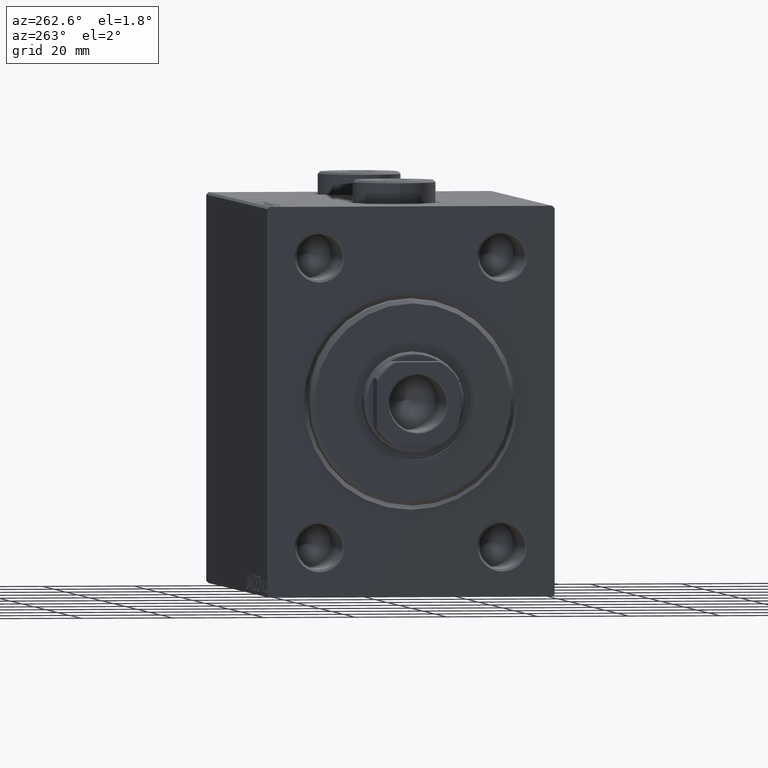
[diagram: clean part render]
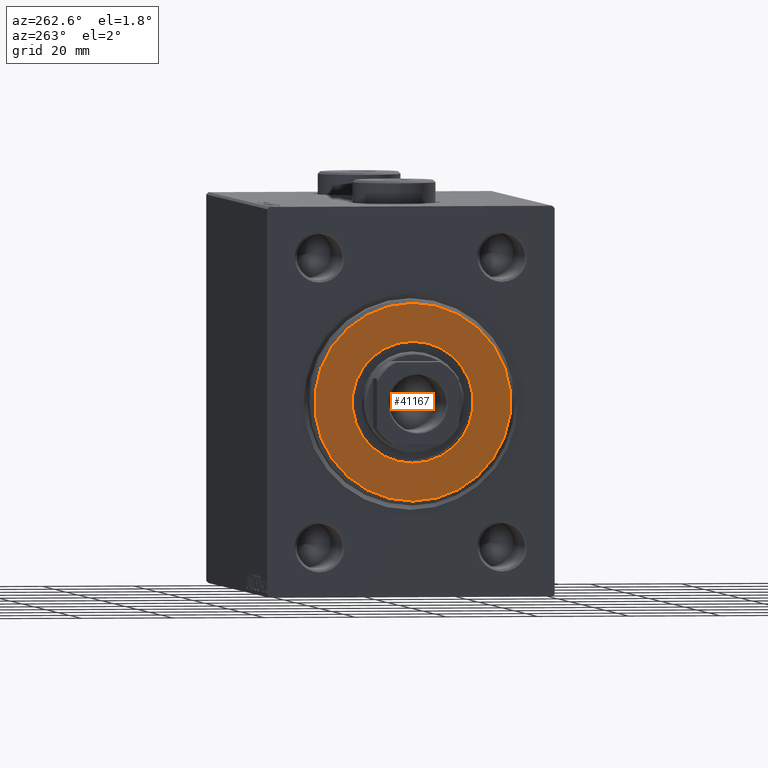
[diagram: same view with one face highlighted and labeled with its STEP entity id]
A machine part, auxiliary view. The second image highlights one B-rep face of the part: STEP entity #41167.
In plain terms, the highlighted planar face has unit normal (-1, 0, 0).
Its self-contained STEP definition (entity closure, byte-faithful):
#350 = AXIS2_PLACEMENT_3D ( 'NONE', #35406, #13976, #10762 ) ;
#626 = ORIENTED_EDGE ( 'NONE', *, *, #15431, .F. ) ;
#790 = VERTEX_POINT ( 'NONE', #40249 ) ;
#1204 = EDGE_LOOP ( 'NONE', ( #17322, #24346 ) ) ;
#1475 = CARTESIAN_POINT ( 'NONE',  ( 3.000000000000000000, 0.000000000000000000, 0.000000000000000000 ) ) ;
#2128 = CARTESIAN_POINT ( 'NONE',  ( 3.000000000000000000, 0.000000000000000000, 0.000000000000000000 ) ) ;
#3763 = DIRECTION ( 'NONE',  ( 1.000000000000000000, -0.000000000000000000, 0.000000000000000000 ) ) ;
#6830 = AXIS2_PLACEMENT_3D ( 'NONE', #1475, #36970, #37197 ) ;
#7248 = FACE_OUTER_BOUND ( 'NONE', #1204, .T. ) ;
#9794 = CIRCLE ( 'NONE', #6830, 13.25000000000000178 ) ;
#10056 = EDGE_CURVE ( 'NONE', #41375, #790, #24339, .T. ) ;
#10762 = DIRECTION ( 'NONE',  ( 0.000000000000000000, 0.000000000000000000, -1.000000000000000000 ) ) ;
#13460 = CARTESIAN_POINT ( 'NONE',  ( 3.000000000000000000, 0.000000000000000000, 0.000000000000000000 ) ) ;
#13667 = AXIS2_PLACEMENT_3D ( 'NONE', #38237, #13810, #41917 ) ;
#13810 = DIRECTION ( 'NONE',  ( 1.000000000000000000, -0.000000000000000000, 0.000000000000000000 ) ) ;
#13976 = DIRECTION ( 'NONE',  ( 1.000000000000000000, -0.000000000000000000, 0.000000000000000000 ) ) ;
#14078 = CARTESIAN_POINT ( 'NONE',  ( 3.000000000000000000, 0.000000000000000000, 21.50000000000000355 ) ) ;
#14106 = AXIS2_PLACEMENT_3D ( 'NONE', #13460, #3763, #38340 ) ;
#15225 = EDGE_LOOP ( 'NONE', ( #626, #24469 ) ) ;
#15431 = EDGE_CURVE ( 'NONE', #790, #41375, #9794, .T. ) ;
#15791 = CIRCLE ( 'NONE', #13667, 21.50000000000000355 ) ;
#15830 = CIRCLE ( 'NONE', #350, 21.50000000000000355 ) ;
#16643 = DIRECTION ( 'NONE',  ( 0.000000000000000000, 0.000000000000000000, -1.000000000000000000 ) ) ;
#16723 = VERTEX_POINT ( 'NONE', #14078 ) ;
#17322 = ORIENTED_EDGE ( 'NONE', *, *, #22710, .T. ) ;
#18972 = VERTEX_POINT ( 'NONE', #29617 ) ;
#20638 = AXIS2_PLACEMENT_3D ( 'NONE', #2128, #30258, #16643 ) ;
#20698 = EDGE_CURVE ( 'NONE', #18972, #16723, #15830, .T. ) ;
#21297 = FACE_BOUND ( 'NONE', #15225, .T. ) ;
#22710 = EDGE_CURVE ( 'NONE', #16723, #18972, #15791, .T. ) ;
#24339 = CIRCLE ( 'NONE', #20638, 13.25000000000000178 ) ;
#24346 = ORIENTED_EDGE ( 'NONE', *, *, #20698, .T. ) ;
#24469 = ORIENTED_EDGE ( 'NONE', *, *, #10056, .F. ) ;
#29617 = CARTESIAN_POINT ( 'NONE',  ( 3.000000000000000000, 2.694222958124177598E-15, -21.50000000000000355 ) ) ;
#30258 = DIRECTION ( 'NONE',  ( 1.000000000000000000, 0.000000000000000000, 0.000000000000000000 ) ) ;
#35352 = PLANE ( 'NONE',  #14106 ) ;
#35406 = CARTESIAN_POINT ( 'NONE',  ( 3.000000000000000000, 0.000000000000000000, 0.000000000000000000 ) ) ;
#36970 = DIRECTION ( 'NONE',  ( 1.000000000000000000, 0.000000000000000000, 0.000000000000000000 ) ) ;
#37197 = DIRECTION ( 'NONE',  ( 0.000000000000000000, 0.000000000000000000, -1.000000000000000000 ) ) ;
#38237 = CARTESIAN_POINT ( 'NONE',  ( 3.000000000000000000, 0.000000000000000000, 0.000000000000000000 ) ) ;
#38340 = DIRECTION ( 'NONE',  ( 0.000000000000000000, 0.000000000000000000, -1.000000000000000000 ) ) ;
#40249 = CARTESIAN_POINT ( 'NONE',  ( 3.000000000000000000, 0.000000000000000000, -13.25000000000000178 ) ) ;
#41167 = ADVANCED_FACE ( 'NONE', ( #7248, #21297 ), #35352, .T. ) ;
#41375 = VERTEX_POINT ( 'NONE', #43126 ) ;
#41917 = DIRECTION ( 'NONE',  ( 0.000000000000000000, 0.000000000000000000, -1.000000000000000000 ) ) ;
#43126 = CARTESIAN_POINT ( 'NONE',  ( 3.000000000000000000, 1.622657008870243277E-15, 13.25000000000000178 ) ) ;